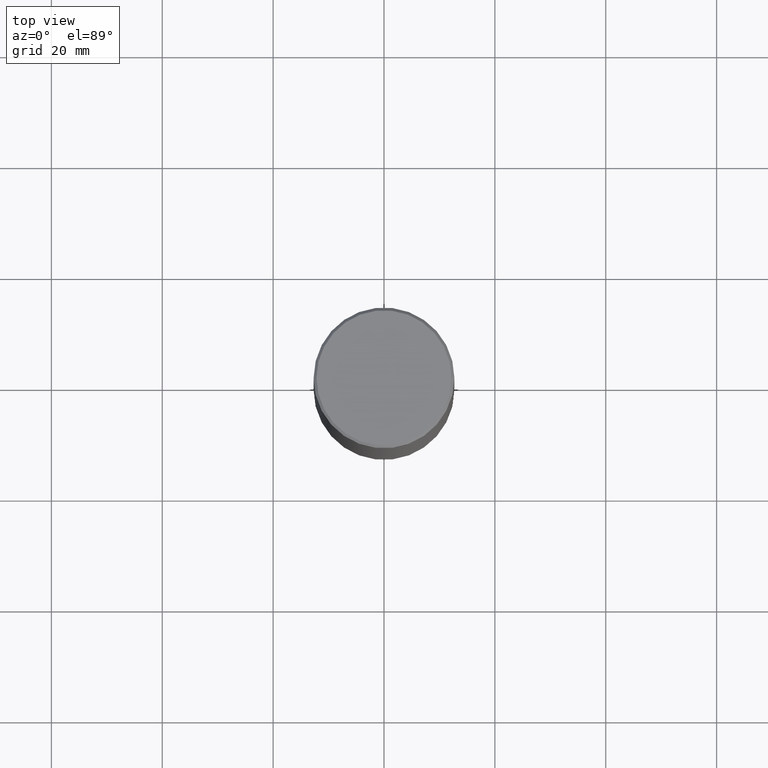
[diagram: clean part render]
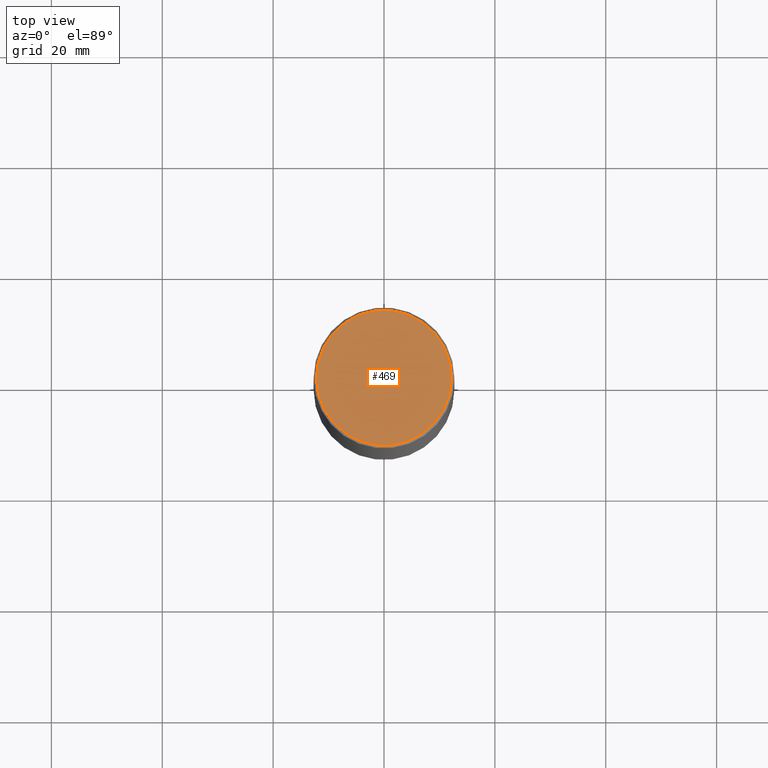
[diagram: same view with one face highlighted and labeled with its STEP entity id]
A machine part, top view. The second image highlights one B-rep face of the part: STEP entity #469.
In plain terms, the highlighted planar face has unit normal (0, -0, -1).
Its self-contained STEP definition (entity closure, byte-faithful):
#14 = ORIENTED_EDGE ( 'NONE', *, *, #261, .T. ) ;
#28 = DIRECTION ( 'NONE',  ( -1.000000000000000000, 6.982962677686265922E-15, -4.876176775795935793E-29 ) ) ;
#63 = CIRCLE ( 'NONE', #345, 0.4799999999999988165 ) ;
#81 = DIRECTION ( 'NONE',  ( 1.000000000000000000, -6.982962677686267499E-15, 4.876431871984425487E-29 ) ) ;
#86 = CARTESIAN_POINT ( 'NONE',  ( -4.175405657340879278E-46, 5.961372681521788801E-32, 1.707404996040164512E-17 ) ) ;
#126 = CIRCLE ( 'NONE', #294, 0.4799999999999988165 ) ;
#138 = DIRECTION ( 'NONE',  ( 1.000000000000000000, -6.982962677686267499E-15, 4.876431871984425487E-29 ) ) ;
#161 = VERTEX_POINT ( 'NONE', #246 ) ;
#175 = AXIS2_PLACEMENT_3D ( 'NONE', #177, #407, #28 ) ;
#177 = CARTESIAN_POINT ( 'NONE',  ( 3.351822085289399659E-15, 0.4799999999999988165, -1.667374017664504893E-15 ) ) ;
#178 = CARTESIAN_POINT ( 'NONE',  ( -0.4799999999999988165, 3.386736898677831703E-15, 1.707404996037808406E-17 ) ) ;
#246 = CARTESIAN_POINT ( 'NONE',  ( 0.4799999999999988165, -3.396558832296475394E-15, 1.707404996042524007E-17 ) ) ;
#254 = DIRECTION ( 'NONE',  ( -2.445468806185136597E-29, 3.491481338843145583E-15, 1.000000000000000000 ) ) ;
#256 = FACE_OUTER_BOUND ( 'NONE', #463, .T. ) ;
#261 = EDGE_CURVE ( 'NONE', #161, #376, #126, .T. ) ;
#294 = AXIS2_PLACEMENT_3D ( 'NONE', #86, #424, #81 ) ;
#345 = AXIS2_PLACEMENT_3D ( 'NONE', #373, #254, #138 ) ;
#373 = CARTESIAN_POINT ( 'NONE',  ( -4.175405657340879278E-46, 5.961372681521788801E-32, 1.707404996040164512E-17 ) ) ;
#376 = VERTEX_POINT ( 'NONE', #178 ) ;
#407 = DIRECTION ( 'NONE',  ( 2.438088387897960049E-29, -3.491481338843145188E-15, -1.000000000000000000 ) ) ;
#409 = PLANE ( 'NONE',  #175 ) ;
#424 = DIRECTION ( 'NONE',  ( -2.445468806185136597E-29, 3.491481338843145583E-15, 1.000000000000000000 ) ) ;
#426 = EDGE_CURVE ( 'NONE', #376, #161, #63, .T. ) ;
#463 = EDGE_LOOP ( 'NONE', ( #467, #14 ) ) ;
#467 = ORIENTED_EDGE ( 'NONE', *, *, #426, .T. ) ;
#469 = ADVANCED_FACE ( 'NONE', ( #256 ), #409, .F. ) ;